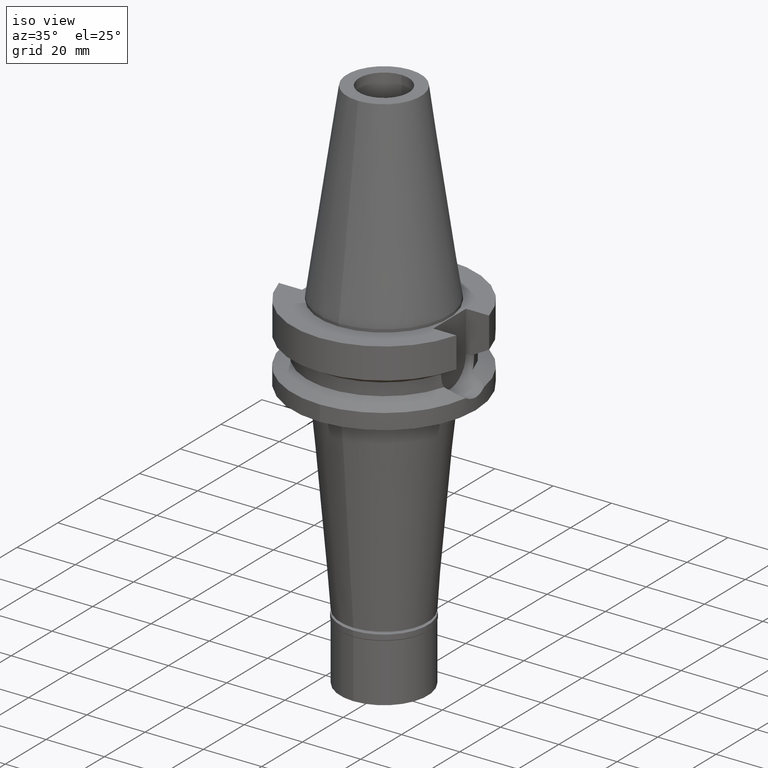
[diagram: clean part render]
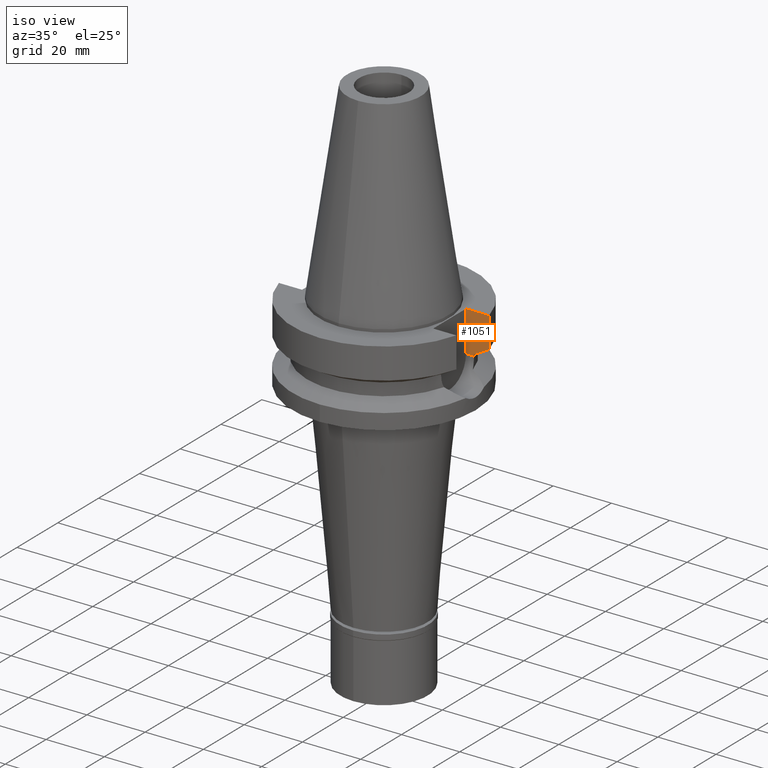
[diagram: same view with one face highlighted and labeled with its STEP entity id]
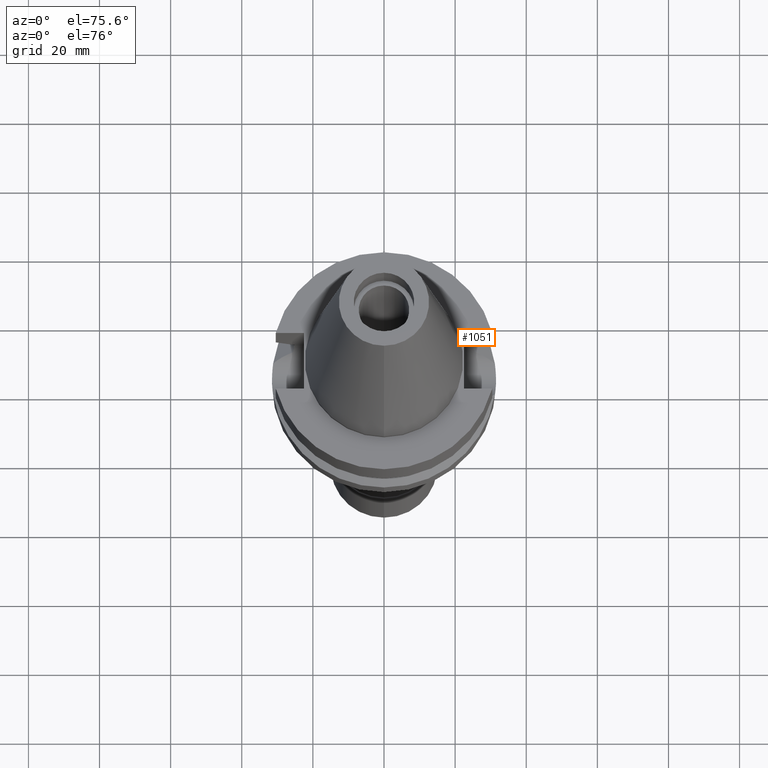
[diagram: same view with one face highlighted and labeled with its STEP entity id]
A machine part, iso view. The second image highlights one B-rep face of the part: STEP entity #1051.
A second angle (auxiliary view) of the same face is appended — the face is thin or edge-on in the first view.
In plain terms, the highlighted planar face has unit normal (0, 1, 0).
Its self-contained STEP definition (entity closure, byte-faithful):
#9 = DIRECTION ( 'NONE',  ( 1.000000000000000000, 0.0000000000000000000, 0.0000000000000000000 ) ) ;
#23 = DIRECTION ( 'NONE',  ( -1.807006250816990814E-08, 6.836124332236961632E-08, 0.9999999999999974465 ) ) ;
#88 = VECTOR ( 'NONE', #232, 1000.000000000000000 ) ;
#132 = CARTESIAN_POINT ( 'NONE',  ( 25.24772413117000269, 8.049995415907000407, -14.45229202706000038 ) ) ;
#171 = VECTOR ( 'NONE', #23, 1000.000000000000114 ) ;
#195 = PLANE ( 'NONE',  #506 ) ;
#198 = VECTOR ( 'NONE', #240, 1000.000000000000000 ) ;
#212 = CARTESIAN_POINT ( 'NONE',  ( 30.45402291370999848, 8.049999277728000280, -11.56551215802000065 ) ) ;
#232 = DIRECTION ( 'NONE',  ( 1.000000000000000000, -3.506251283225999947E-14, 0.0000000000000000000 ) ) ;
#240 = DIRECTION ( 'NONE',  ( 0.0000000000000000000, 0.0000000000000000000, -1.000000000000000000 ) ) ;
#446 = VERTEX_POINT ( 'NONE', #1942 ) ;
#506 = AXIS2_PLACEMENT_3D ( 'NONE', #2660, #2909, #9 ) ;
#518 = EDGE_CURVE ( 'NONE', #446, #2184, #2651, .T. ) ;
#839 = VECTOR ( 'NONE', #1789, 1000.000000000000114 ) ;
#937 = DIRECTION ( 'NONE',  ( 1.000000000000000000, -1.551559937893000172E-14, 0.0000000000000000000 ) ) ;
#982 = CARTESIAN_POINT ( 'NONE',  ( 30.45402291370999848, 8.049999277728000280, -11.56551215802000065 ) ) ;
#1051 = ADVANCED_FACE ( 'NONE', ( #1677 ), #195, .F. ) ;
#1064 = EDGE_LOOP ( 'NONE', ( #1452, #2840, #1961, #1343, #2002, #1158 ) ) ;
#1071 = VECTOR ( 'NONE', #937, 1000.000000000000000 ) ;
#1090 = EDGE_CURVE ( 'NONE', #2449, #1885, #1641, .T. ) ;
#1158 = ORIENTED_EDGE ( 'NONE', *, *, #1707, .T. ) ;
#1343 = ORIENTED_EDGE ( 'NONE', *, *, #1876, .T. ) ;
#1452 = ORIENTED_EDGE ( 'NONE', *, *, #1815, .F. ) ;
#1641 = LINE ( 'NONE', #3097, #1071 ) ;
#1677 = FACE_OUTER_BOUND ( 'NONE', #1064, .T. ) ;
#1678 = CARTESIAN_POINT ( 'NONE',  ( 22.50000000000000000, 8.050000000000000711, -1.000000000000000000 ) ) ;
#1707 = EDGE_CURVE ( 'NONE', #1885, #2680, #2292, .T. ) ;
#1789 = DIRECTION ( 'NONE',  ( 2.936649996080920089E-06, -9.210406386934750857E-06, 0.9999999999532721562 ) ) ;
#1815 = EDGE_CURVE ( 'NONE', #2491, #2680, #2190, .T. ) ;
#1876 = EDGE_CURVE ( 'NONE', #446, #2449, #3129, .T. ) ;
#1885 = VERTEX_POINT ( 'NONE', #2897 ) ;
#1897 = CARTESIAN_POINT ( 'NONE',  ( 22.50000000000000000, 8.050000000000000711, -1.000000000000000000 ) ) ;
#1942 = CARTESIAN_POINT ( 'NONE',  ( 22.50000000000000000, 8.050000000000000711, -1.000000000000000000 ) ) ;
#1961 = ORIENTED_EDGE ( 'NONE', *, *, #518, .F. ) ;
#2002 = ORIENTED_EDGE ( 'NONE', *, *, #1090, .T. ) ;
#2184 = VERTEX_POINT ( 'NONE', #2997 ) ;
#2186 = CARTESIAN_POINT ( 'NONE',  ( 25.24772413117000269, 8.049995415907000407, -14.45229202706000038 ) ) ;
#2190 = B_SPLINE_CURVE_WITH_KNOTS ( 'NONE', 3,
 ( #212, #2377, #2662, #2186 ),
 .UNSPECIFIED., .F., .F.,
 ( 4, 4 ),
 ( 0.0000000000000000000, 1.000000000000000000 ),
 .UNSPECIFIED. ) ;
#2292 = LINE ( 'NONE', #2781, #839 ) ;
#2377 = CARTESIAN_POINT ( 'NONE',  ( 28.57292329446579870, 8.049998556396268157, -12.61549605313999933 ) ) ;
#2449 = VERTEX_POINT ( 'NONE', #2573 ) ;
#2491 = VERTEX_POINT ( 'NONE', #982 ) ;
#2573 = CARTESIAN_POINT ( 'NONE',  ( 22.50000000000000000, 8.050000000000000711, -14.94999999999999929 ) ) ;
#2651 = LINE ( 'NONE', #1897, #88 ) ;
#2660 = CARTESIAN_POINT ( 'NONE',  ( 22.50000000000000000, 8.050000000000000711, -14.94999999999999929 ) ) ;
#2662 = CARTESIAN_POINT ( 'NONE',  ( 26.83754616426121942, 8.049990821659628537, -13.57774887871505420 ) ) ;
#2680 = VERTEX_POINT ( 'NONE', #132 ) ;
#2701 = CARTESIAN_POINT ( 'NONE',  ( 30.45402291370999848, 8.049999277728000280, -11.56551215802000065 ) ) ;
#2773 = EDGE_CURVE ( 'NONE', #2491, #2184, #3024, .T. ) ;
#2781 = CARTESIAN_POINT ( 'NONE',  ( 25.24772266958000344, 8.050000000000000711, -14.94999999999999929 ) ) ;
#2840 = ORIENTED_EDGE ( 'NONE', *, *, #2773, .T. ) ;
#2897 = CARTESIAN_POINT ( 'NONE',  ( 25.24772266958000344, 8.050000000000000711, -14.94999999999999929 ) ) ;
#2909 = DIRECTION ( 'NONE',  ( -0.0000000000000000000, 1.000000000000000000, 0.0000000000000000000 ) ) ;
#2997 = CARTESIAN_POINT ( 'NONE',  ( 30.45402272279000044, 8.050000000000000711, -1.000000000000000000 ) ) ;
#3024 = LINE ( 'NONE', #2701, #171 ) ;
#3097 = CARTESIAN_POINT ( 'NONE',  ( 22.50000000000000000, 8.050000000000000711, -14.94999999999999929 ) ) ;
#3129 = LINE ( 'NONE', #1678, #198 ) ;